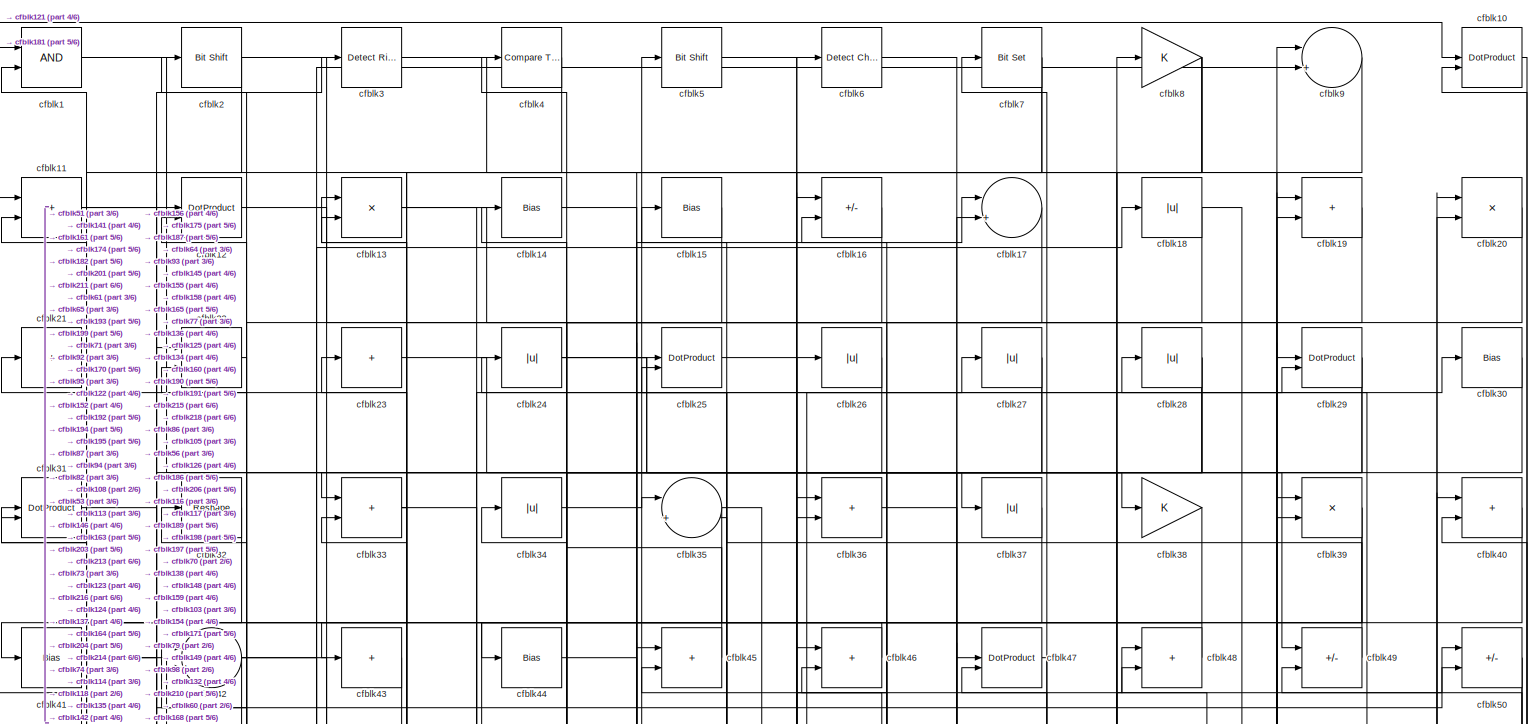
[diagram: root canvas - part 1/6, full width, top band]
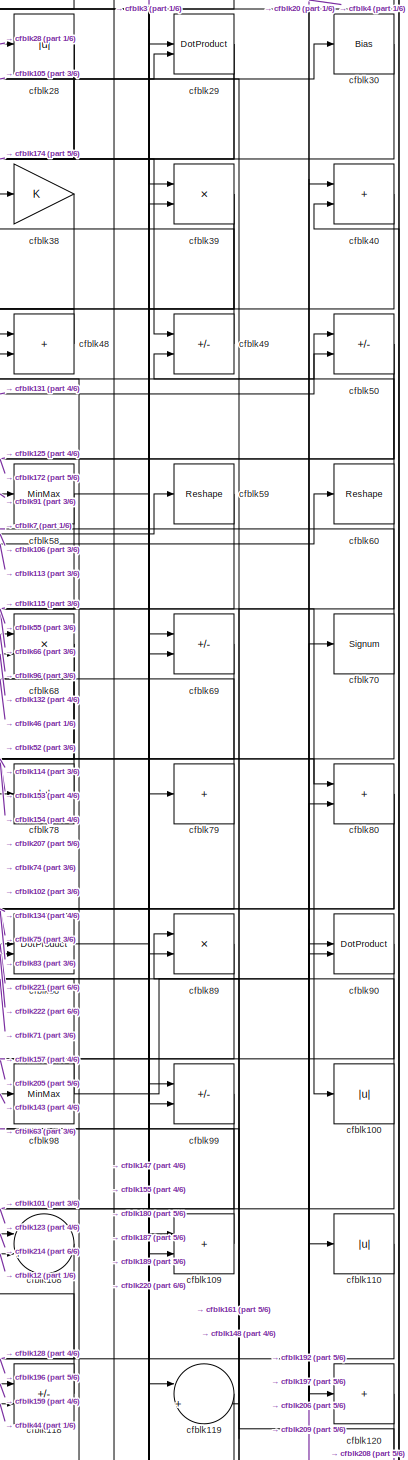
[diagram: root canvas - part 2/6, top right region]
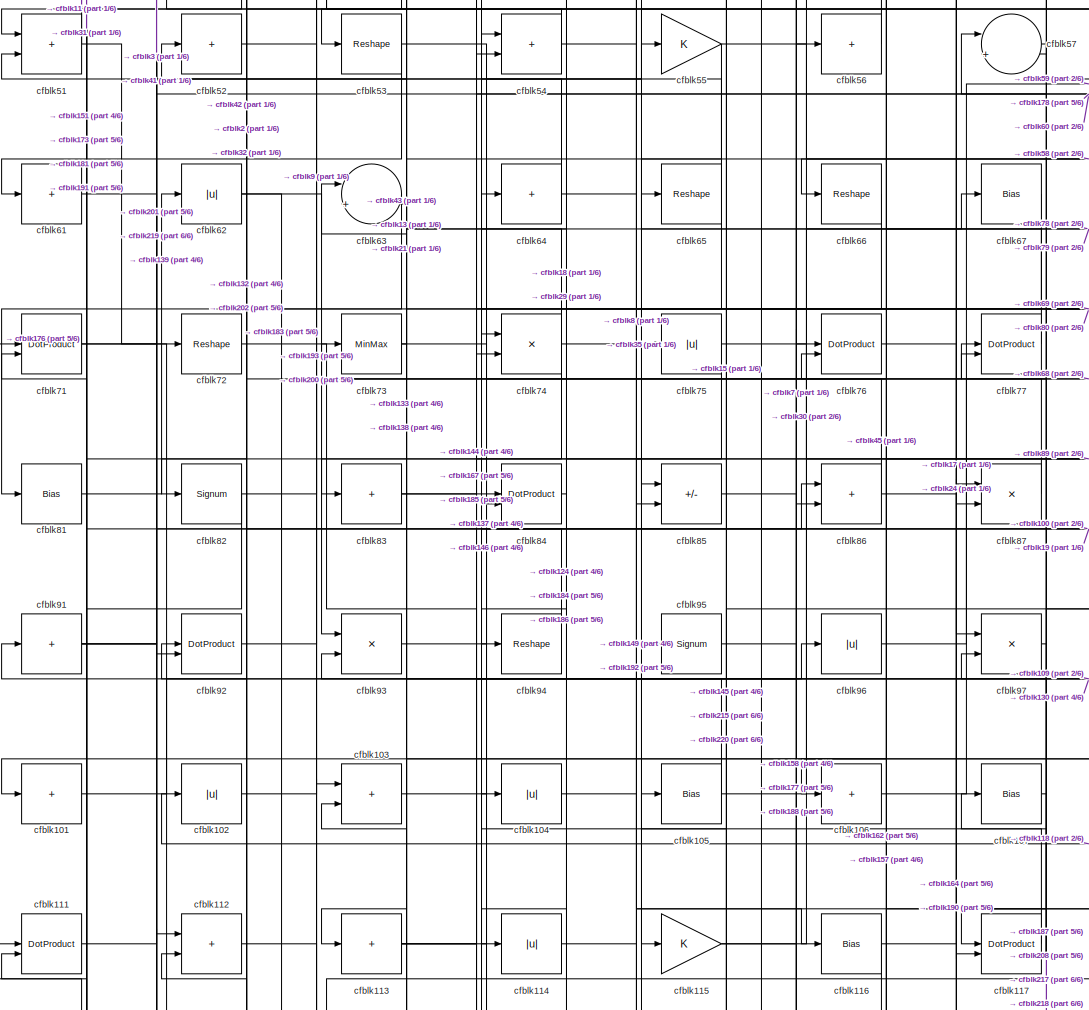
[diagram: root canvas - part 3/6, central region]
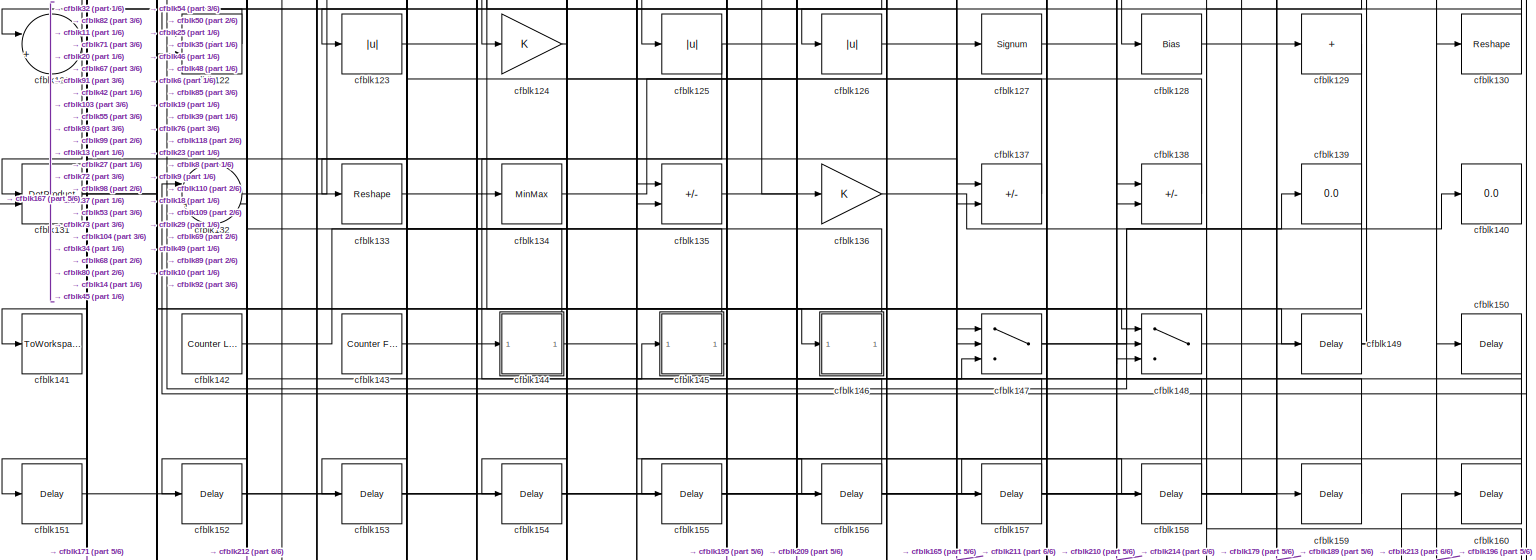
[diagram: root canvas - part 4/6, full width, middle band]
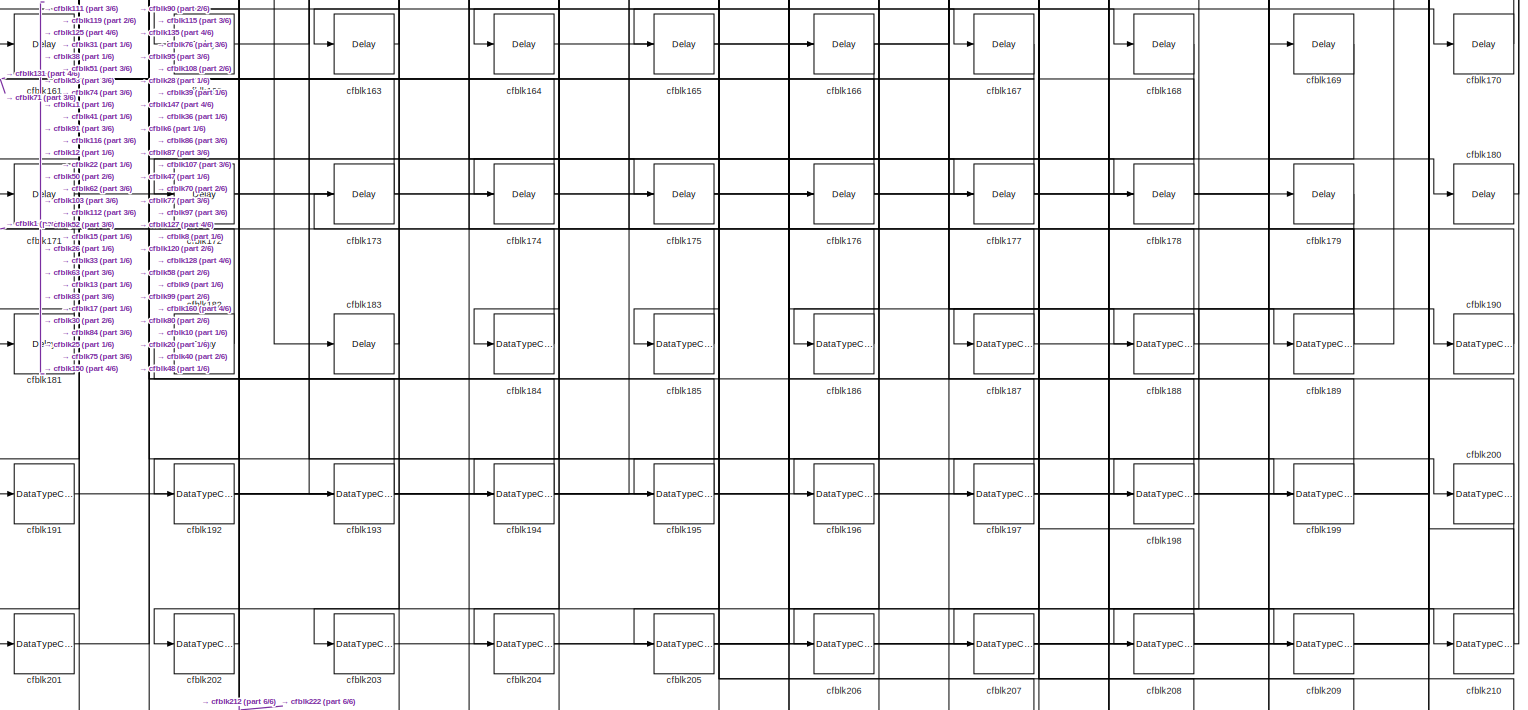
[diagram: root canvas - part 5/6, full width, bottom band]
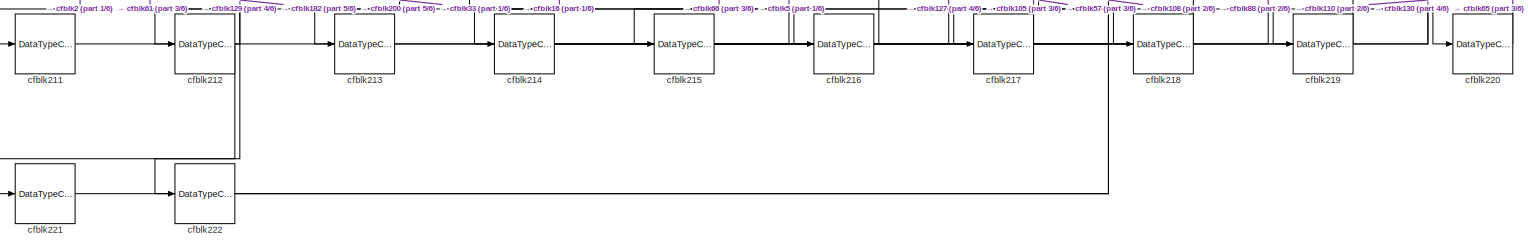
[diagram: root canvas - part 6/6, full width, bottom band]
MODEL slx_a0830a3f0579
KIND model
CONFIG AbsTol = auto
CONFIG EnableMultiTasking = off
CONFIG FixedStep = auto
CONFIG MaxStep = auto
CONFIG MinStep = auto
CONFIG RelTol = 1e-3
CONFIG SampleTimeConstraint = Unconstrained
CONFIG SolverName = VariableStepAuto
CONFIG StartTime = 0.0
CONFIG StopTime = 10.0
BLOCK [Logic] cfblk1
  AllPortsSameDT = off
  OutDataTypeStr = boolean
BLOCK [DotProduct] cfblk10
  OutDataTypeStr = Inherit: Inherit via internal rule
BLOCK [Abs] cfblk100
  SaturateOnIntegerOverflow = off
BLOCK [Sum] cfblk101
  IconShape = rectangular
  Inputs = +
BLOCK [Abs] cfblk102
  SaturateOnIntegerOverflow = off
BLOCK [Sum] cfblk103
  IconShape = rectangular
BLOCK [Abs] cfblk104
  SaturateOnIntegerOverflow = off
BLOCK [Bias] cfblk105
  Bias = 0.0
  SaturateOnIntegerOverflow = off
BLOCK [Sum] cfblk106
  IconShape = rectangular
  Inputs = +
BLOCK [Bias] cfblk107
  Bias = 0.0
  SaturateOnIntegerOverflow = off
BLOCK [Sum] cfblk108
  Inputs = |++
BLOCK [Sum] cfblk109
  IconShape = rectangular
BLOCK [Sum] cfblk11
  IconShape = rectangular
BLOCK [Abs] cfblk110
  SaturateOnIntegerOverflow = off
BLOCK [DotProduct] cfblk111
  OutDataTypeStr = Inherit: Inherit via internal rule
BLOCK [Sum] cfblk112
  IconShape = rectangular
BLOCK [Sum] cfblk113
  IconShape = rectangular
  Inputs = +
BLOCK [Abs] cfblk114
  SaturateOnIntegerOverflow = off
BLOCK [Gain] cfblk115
BLOCK [Bias] cfblk116
  Bias = 0.0
  SaturateOnIntegerOverflow = off
BLOCK [DotProduct] cfblk117
  OutDataTypeStr = Inherit: Inherit via internal rule
BLOCK [Sum] cfblk118
  IconShape = rectangular
  Inputs = +-
BLOCK [Sum] cfblk119
  Inputs = |++
BLOCK [DotProduct] cfblk12
  OutDataTypeStr = Inherit: Inherit via internal rule
BLOCK [Sum] cfblk120
  IconShape = rectangular
  Inputs = +
BLOCK [Sum] cfblk121
  Inputs = |++
BLOCK [Sum] cfblk122
  IconShape = rectangular
BLOCK [Abs] cfblk123
  SaturateOnIntegerOverflow = off
BLOCK [Gain] cfblk124
BLOCK [Abs] cfblk125
  SaturateOnIntegerOverflow = off
BLOCK [Abs] cfblk126
  SaturateOnIntegerOverflow = off
BLOCK [Signum] cfblk127
BLOCK [Bias] cfblk128
  Bias = 0.0
  SaturateOnIntegerOverflow = off
BLOCK [Sum] cfblk129
  IconShape = rectangular
  Inputs = +
BLOCK [Product] cfblk13
  Inputs = */
  RndMeth = Zero
  SaturateOnIntegerOverflow = on
BLOCK [Reshape] cfblk130
BLOCK [DotProduct] cfblk131
  OutDataTypeStr = Inherit: Inherit via internal rule
BLOCK [Sum] cfblk132
  Inputs = |++
BLOCK [Reshape] cfblk133
BLOCK [MinMax] cfblk134
BLOCK [Sum] cfblk135
  IconShape = rectangular
  Inputs = +-
BLOCK [Gain] cfblk136
BLOCK [Sum] cfblk137
  IconShape = rectangular
  Inputs = +-
BLOCK [Sum] cfblk138
  IconShape = rectangular
  Inputs = +-
BLOCK [Display] cfblk139
  Decimation = 1
BLOCK [Bias] cfblk14
  Bias = 0.0
  SaturateOnIntegerOverflow = off
BLOCK [Display] cfblk140
  Decimation = 1
BLOCK [ToWorkspace] cfblk141
  MaxDataPoints = inf
  SampleTime = -1
  SaveFormat = Timeseries
  VariableName = simout
BLOCK [Reference] cfblk142  REF=hdlsllib/Sources/Counter
Limited
  SourceBlock = hdlsllib/Sources/Counter\nLimited
  SourceType = Counter Limited
BLOCK [Reference] cfblk143  REF=hdlsllib/Sources/Counter
Free-Running
  SourceBlock = hdlsllib/Sources/Counter\nFree-Running
  SourceType = Counter Free-Running
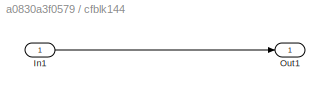
BLOCK [SubSystem] cfblk144
  LibrarySourceBlock = hdlsllib/Ports &\nSubsystems/Subsystem
BLOCK [Inport] cfblk144/In1
BLOCK [Outport] cfblk144/Out1
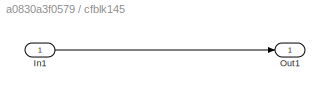
BLOCK [SubSystem] cfblk145
  LibrarySourceBlock = hdlsllib/Ports &\nSubsystems/Subsystem
BLOCK [Inport] cfblk145/In1
BLOCK [Outport] cfblk145/Out1
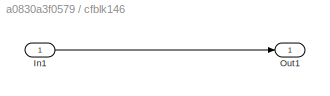
BLOCK [SubSystem] cfblk146
  LibrarySourceBlock = hdlsllib/Ports &\nSubsystems/Subsystem
BLOCK [Inport] cfblk146/In1
BLOCK [Outport] cfblk146/Out1
BLOCK [Switch] cfblk147
  InputSameDT = off
  SaturateOnIntegerOverflow = off
BLOCK [Switch] cfblk148
  InputSameDT = off
  SaturateOnIntegerOverflow = off
BLOCK [Delay] cfblk149
  InputPortMap = u0
  SampleTime = 1
BLOCK [Bias] cfblk15
  Bias = 0.0
  SaturateOnIntegerOverflow = off
BLOCK [Delay] cfblk150
  InputPortMap = u0
  SampleTime = 1
BLOCK [Delay] cfblk151
  InputPortMap = u0
  SampleTime = 1
BLOCK [Delay] cfblk152
  InputPortMap = u0
  SampleTime = 1
BLOCK [Delay] cfblk153
  InputPortMap = u0
  SampleTime = 1
BLOCK [Delay] cfblk154
  InputPortMap = u0
  SampleTime = 1
BLOCK [Delay] cfblk155
  InputPortMap = u0
  SampleTime = 1
BLOCK [Delay] cfblk156
  InputPortMap = u0
  SampleTime = 1
BLOCK [Delay] cfblk157
  InputPortMap = u0
  SampleTime = 1
BLOCK [Delay] cfblk158
  InputPortMap = u0
  SampleTime = 1
BLOCK [Delay] cfblk159
  InputPortMap = u0
  SampleTime = 1
BLOCK [Sum] cfblk16
  IconShape = rectangular
  Inputs = +-
BLOCK [Delay] cfblk160
  InputPortMap = u0
  SampleTime = 1
BLOCK [Delay] cfblk161
  InputPortMap = u0
  SampleTime = 1
BLOCK [Delay] cfblk162
  InputPortMap = u0
  SampleTime = 1
BLOCK [Delay] cfblk163
  InputPortMap = u0
  SampleTime = 1
BLOCK [Delay] cfblk164
  InputPortMap = u0
  SampleTime = 1
BLOCK [Delay] cfblk165
  InputPortMap = u0
  SampleTime = 1
BLOCK [Delay] cfblk166
  InputPortMap = u0
  SampleTime = 1
BLOCK [Delay] cfblk167
  InputPortMap = u0
  SampleTime = 1
BLOCK [Delay] cfblk168
  InputPortMap = u0
  SampleTime = 1
BLOCK [Delay] cfblk169
  InputPortMap = u0
  SampleTime = 1
BLOCK [Sum] cfblk17
  Inputs = |++
BLOCK [Delay] cfblk170
  InputPortMap = u0
  SampleTime = 1
BLOCK [Delay] cfblk171
  InputPortMap = u0
  SampleTime = 1
BLOCK [Delay] cfblk172
  InputPortMap = u0
  SampleTime = 1
BLOCK [Delay] cfblk173
  InputPortMap = u0
  SampleTime = 1
BLOCK [Delay] cfblk174
  InputPortMap = u0
  SampleTime = 1
BLOCK [Delay] cfblk175
  InputPortMap = u0
  SampleTime = 1
BLOCK [Delay] cfblk176
  InputPortMap = u0
  SampleTime = 1
BLOCK [Delay] cfblk177
  InputPortMap = u0
  SampleTime = 1
BLOCK [Delay] cfblk178
  InputPortMap = u0
  SampleTime = 1
BLOCK [Delay] cfblk179
  InputPortMap = u0
  SampleTime = 1
BLOCK [Abs] cfblk18
  SaturateOnIntegerOverflow = off
BLOCK [Delay] cfblk180
  InputPortMap = u0
  SampleTime = 1
BLOCK [Delay] cfblk181
  InputPortMap = u0
  SampleTime = 1
BLOCK [Delay] cfblk182
  InputPortMap = u0
  SampleTime = 1
BLOCK [Delay] cfblk183
  InputPortMap = u0
  SampleTime = 1
BLOCK [DataTypeConversion] cfblk184
  OutDataTypeStr = uint8
  RndMeth = Floor
  SaturateOnIntegerOverflow = off
BLOCK [DataTypeConversion] cfblk185
  OutDataTypeStr = uint8
  RndMeth = Floor
  SaturateOnIntegerOverflow = off
BLOCK [DataTypeConversion] cfblk186
  OutDataTypeStr = uint8
  RndMeth = Floor
  SaturateOnIntegerOverflow = off
BLOCK [DataTypeConversion] cfblk187
  RndMeth = Floor
  SaturateOnIntegerOverflow = off
BLOCK [DataTypeConversion] cfblk188
  OutDataTypeStr = uint8
  RndMeth = Floor
  SaturateOnIntegerOverflow = off
BLOCK [DataTypeConversion] cfblk189
  RndMeth = Floor
  SaturateOnIntegerOverflow = off
BLOCK [Sum] cfblk19
  IconShape = rectangular
BLOCK [DataTypeConversion] cfblk190
  OutDataTypeStr = uint8
  RndMeth = Floor
  SaturateOnIntegerOverflow = off
BLOCK [DataTypeConversion] cfblk191
  OutDataTypeStr = uint8
  RndMeth = Floor
  SaturateOnIntegerOverflow = off
BLOCK [DataTypeConversion] cfblk192
  RndMeth = Floor
  SaturateOnIntegerOverflow = off
BLOCK [DataTypeConversion] cfblk193
  OutDataTypeStr = uint8
  RndMeth = Floor
  SaturateOnIntegerOverflow = off
BLOCK [DataTypeConversion] cfblk194
  OutDataTypeStr = uint8
  RndMeth = Floor
  SaturateOnIntegerOverflow = off
BLOCK [DataTypeConversion] cfblk195
  OutDataTypeStr = uint8
  RndMeth = Floor
  SaturateOnIntegerOverflow = off
BLOCK [DataTypeConversion] cfblk196
  OutDataTypeStr = uint8
  RndMeth = Floor
  SaturateOnIntegerOverflow = off
BLOCK [DataTypeConversion] cfblk197
  RndMeth = Floor
  SaturateOnIntegerOverflow = off
BLOCK [DataTypeConversion] cfblk198
  OutDataTypeStr = uint8
  RndMeth = Floor
  SaturateOnIntegerOverflow = off
BLOCK [DataTypeConversion] cfblk199
  OutDataTypeStr = uint8
  RndMeth = Floor
  SaturateOnIntegerOverflow = off
BLOCK [Reference] cfblk2  REF=hdlsllib/Logic and Bit
Operations/Bit Shift
  SourceBlock = hdlsllib/Logic and Bit\nOperations/Bit Shift
  SourceType = Bit Shift
BLOCK [Product] cfblk20
  Inputs = */
  RndMeth = Zero
  SaturateOnIntegerOverflow = on
BLOCK [DataTypeConversion] cfblk200
  RndMeth = Floor
  SaturateOnIntegerOverflow = off
BLOCK [DataTypeConversion] cfblk201
  OutDataTypeStr = uint8
  RndMeth = Floor
  SaturateOnIntegerOverflow = off
BLOCK [DataTypeConversion] cfblk202
  OutDataTypeStr = uint8
  RndMeth = Floor
  SaturateOnIntegerOverflow = off
BLOCK [DataTypeConversion] cfblk203
  OutDataTypeStr = uint8
  RndMeth = Floor
  SaturateOnIntegerOverflow = off
BLOCK [DataTypeConversion] cfblk204
  OutDataTypeStr = uint8
  RndMeth = Floor
  SaturateOnIntegerOverflow = off
BLOCK [DataTypeConversion] cfblk205
  RndMeth = Floor
  SaturateOnIntegerOverflow = off
BLOCK [DataTypeConversion] cfblk206
  OutDataTypeStr = uint8
  RndMeth = Floor
  SaturateOnIntegerOverflow = off
BLOCK [DataTypeConversion] cfblk207
  OutDataTypeStr = uint8
  RndMeth = Floor
  SaturateOnIntegerOverflow = off
BLOCK [DataTypeConversion] cfblk208
  RndMeth = Floor
  SaturateOnIntegerOverflow = off
BLOCK [DataTypeConversion] cfblk209
  OutDataTypeStr = uint8
  RndMeth = Floor
  SaturateOnIntegerOverflow = off
BLOCK [Sum] cfblk21
  IconShape = rectangular
  Inputs = +
BLOCK [DataTypeConversion] cfblk210
  RndMeth = Floor
  SaturateOnIntegerOverflow = off
BLOCK [DataTypeConversion] cfblk211
  OutDataTypeStr = uint8
  RndMeth = Floor
  SaturateOnIntegerOverflow = off
BLOCK [DataTypeConversion] cfblk212
  RndMeth = Floor
  SaturateOnIntegerOverflow = off
BLOCK [DataTypeConversion] cfblk213
  OutDataTypeStr = uint8
  RndMeth = Floor
  SaturateOnIntegerOverflow = off
BLOCK [DataTypeConversion] cfblk214
  RndMeth = Floor
  SaturateOnIntegerOverflow = off
BLOCK [DataTypeConversion] cfblk215
  OutDataTypeStr = uint8
  RndMeth = Floor
  SaturateOnIntegerOverflow = off
BLOCK [DataTypeConversion] cfblk216
  OutDataTypeStr = uint8
  RndMeth = Floor
  SaturateOnIntegerOverflow = off
BLOCK [DataTypeConversion] cfblk217
  OutDataTypeStr = uint8
  RndMeth = Floor
  SaturateOnIntegerOverflow = off
BLOCK [DataTypeConversion] cfblk218
  OutDataTypeStr = uint8
  RndMeth = Floor
  SaturateOnIntegerOverflow = off
BLOCK [DataTypeConversion] cfblk219
  OutDataTypeStr = uint8
  RndMeth = Floor
  SaturateOnIntegerOverflow = off
BLOCK [Product] cfblk22
  Inputs = */
  RndMeth = Zero
  SaturateOnIntegerOverflow = on
BLOCK [DataTypeConversion] cfblk220
  OutDataTypeStr = uint8
  RndMeth = Floor
  SaturateOnIntegerOverflow = off
BLOCK [DataTypeConversion] cfblk221
  OutDataTypeStr = uint8
  RndMeth = Floor
  SaturateOnIntegerOverflow = off
BLOCK [DataTypeConversion] cfblk222
  OutDataTypeStr = uint8
  RndMeth = Floor
  SaturateOnIntegerOverflow = off
BLOCK [Sum] cfblk23
  IconShape = rectangular
  Inputs = +
BLOCK [Abs] cfblk24
  SaturateOnIntegerOverflow = off
BLOCK [DotProduct] cfblk25
  OutDataTypeStr = Inherit: Inherit via internal rule
BLOCK [Abs] cfblk26
  SaturateOnIntegerOverflow = off
BLOCK [Abs] cfblk27
  SaturateOnIntegerOverflow = off
BLOCK [Abs] cfblk28
  SaturateOnIntegerOverflow = off
BLOCK [DotProduct] cfblk29
  OutDataTypeStr = Inherit: Inherit via internal rule
BLOCK [Reference] cfblk3  REF=hdlsllib/Logic and Bit
Operations/Detect Rise
Positive
  SourceBlock = hdlsllib/Logic and Bit\nOperations/Detect Rise\nPositive
  SourceType = Detect Rise Positive
BLOCK [Bias] cfblk30
  Bias = 0.0
  SaturateOnIntegerOverflow = off
BLOCK [DotProduct] cfblk31
  OutDataTypeStr = Inherit: Inherit via internal rule
BLOCK [Reshape] cfblk32
BLOCK [Sum] cfblk33
  IconShape = rectangular
BLOCK [Abs] cfblk34
  SaturateOnIntegerOverflow = off
BLOCK [Sum] cfblk35
  Inputs = |++
BLOCK [Sum] cfblk36
  IconShape = rectangular
BLOCK [Abs] cfblk37
  SaturateOnIntegerOverflow = off
BLOCK [Gain] cfblk38
BLOCK [Product] cfblk39
  Inputs = */
  RndMeth = Zero
  SaturateOnIntegerOverflow = on
BLOCK [Reference] cfblk4  REF=hdlsllib/Logic and Bit
Operations/Compare
To Zero
  SourceBlock = hdlsllib/Logic and Bit\nOperations/Compare\nTo Zero
  SourceType = Compare To Zero
BLOCK [Sum] cfblk40
  IconShape = rectangular
BLOCK [Bias] cfblk41
  Bias = 0.0
  SaturateOnIntegerOverflow = off
BLOCK [Sum] cfblk42
  Inputs = |++
BLOCK [Sum] cfblk43
  IconShape = rectangular
  Inputs = +
BLOCK [Bias] cfblk44
  Bias = 0.0
  SaturateOnIntegerOverflow = off
BLOCK [Sum] cfblk45
  IconShape = rectangular
BLOCK [Sum] cfblk46
  IconShape = rectangular
BLOCK [DotProduct] cfblk47
  OutDataTypeStr = Inherit: Inherit via internal rule
BLOCK [Sum] cfblk48
  IconShape = rectangular
BLOCK [Sum] cfblk49
  IconShape = rectangular
  Inputs = +-
BLOCK [Reference] cfblk5  REF=hdlsllib/Logic and Bit
Operations/Bit Shift
  SourceBlock = hdlsllib/Logic and Bit\nOperations/Bit Shift
  SourceType = Bit Shift
BLOCK [Sum] cfblk50
  IconShape = rectangular
  Inputs = +-
BLOCK [Sum] cfblk51
  IconShape = rectangular
BLOCK [Sum] cfblk52
  IconShape = rectangular
  Inputs = +
BLOCK [Reshape] cfblk53
BLOCK [Sum] cfblk54
  IconShape = rectangular
BLOCK [Gain] cfblk55
BLOCK [Sum] cfblk56
  IconShape = rectangular
  Inputs = +
BLOCK [Sum] cfblk57
  Inputs = |++
BLOCK [MinMax] cfblk58
BLOCK [Reshape] cfblk59
BLOCK [Reference] cfblk6  REF=simulink/Logic and Bit
Operations/Detect
Change
  LibrarySourceBlock = hdlsllib/Logic and Bit\nOperations/Detect\nChange
  SourceBlock = simulink/Logic and Bit\nOperations/Detect\nChange
  SourceType = Detect Change
BLOCK [Reshape] cfblk60
BLOCK [Sum] cfblk61
  IconShape = rectangular
  Inputs = +
BLOCK [Abs] cfblk62
  SaturateOnIntegerOverflow = off
BLOCK [Sum] cfblk63
  Inputs = |++
BLOCK [Sum] cfblk64
  IconShape = rectangular
  Inputs = +
BLOCK [Reshape] cfblk65
BLOCK [Reshape] cfblk66
BLOCK [Bias] cfblk67
  Bias = 0.0
  SaturateOnIntegerOverflow = off
BLOCK [Product] cfblk68
  Inputs = */
  RndMeth = Zero
  SaturateOnIntegerOverflow = on
BLOCK [Sum] cfblk69
  IconShape = rectangular
  Inputs = +-
BLOCK [Reference] cfblk7  REF=simulink/Logic and Bit
Operations/Bit Set
  LibrarySourceBlock = hdlsllib/Logic and Bit\nOperations/Bit Set
  SourceBlock = simulink/Logic and Bit\nOperations/Bit Set
  SourceType = Bit Set
BLOCK [Signum] cfblk70
BLOCK [DotProduct] cfblk71
  OutDataTypeStr = Inherit: Inherit via internal rule
BLOCK [Reshape] cfblk72
BLOCK [MinMax] cfblk73
BLOCK [Product] cfblk74
  Inputs = */
  RndMeth = Zero
  SaturateOnIntegerOverflow = on
BLOCK [Abs] cfblk75
  SaturateOnIntegerOverflow = off
BLOCK [DotProduct] cfblk76
  OutDataTypeStr = Inherit: Inherit via internal rule
BLOCK [DotProduct] cfblk77
  OutDataTypeStr = Inherit: Inherit via internal rule
BLOCK [Abs] cfblk78
  SaturateOnIntegerOverflow = off
BLOCK [Sum] cfblk79
  IconShape = rectangular
  Inputs = +
BLOCK [Gain] cfblk8
BLOCK [Sum] cfblk80
  IconShape = rectangular
BLOCK [Bias] cfblk81
  Bias = 0.0
  SaturateOnIntegerOverflow = off
BLOCK [Signum] cfblk82
BLOCK [Sum] cfblk83
  IconShape = rectangular
  Inputs = +
BLOCK [DotProduct] cfblk84
  OutDataTypeStr = Inherit: Inherit via internal rule
BLOCK [Sum] cfblk85
  IconShape = rectangular
  Inputs = +-
BLOCK [Sum] cfblk86
  IconShape = rectangular
BLOCK [Product] cfblk87
  Inputs = */
  RndMeth = Zero
  SaturateOnIntegerOverflow = on
BLOCK [DotProduct] cfblk88
  OutDataTypeStr = Inherit: Inherit via internal rule
BLOCK [Product] cfblk89
  Inputs = */
  RndMeth = Zero
  SaturateOnIntegerOverflow = on
BLOCK [Sum] cfblk9
  Inputs = |++
BLOCK [DotProduct] cfblk90
  OutDataTypeStr = Inherit: Inherit via internal rule
BLOCK [Sum] cfblk91
  IconShape = rectangular
  Inputs = +
BLOCK [DotProduct] cfblk92
  OutDataTypeStr = Inherit: Inherit via internal rule
BLOCK [Product] cfblk93
  Inputs = */
  RndMeth = Zero
  SaturateOnIntegerOverflow = on
BLOCK [Reshape] cfblk94
BLOCK [Signum] cfblk95
BLOCK [Abs] cfblk96
  SaturateOnIntegerOverflow = off
BLOCK [Product] cfblk97
  Inputs = */
  RndMeth = Zero
  SaturateOnIntegerOverflow = on
BLOCK [MinMax] cfblk98
BLOCK [Sum] cfblk99
  IconShape = rectangular
  Inputs = +-
NET cfblk100:1 -> cfblk101:1, cfblk71:2
LINE cfblk101:1 -> cfblk56:1
LINE cfblk102:1 -> cfblk78:1
LINE cfblk103:1 -> cfblk19:1
LINE cfblk104:1 -> cfblk116:1
NET cfblk105:1 -> cfblk13:2, cfblk30:1
LINE cfblk106:1 -> cfblk59:1
LINE cfblk107:1 -> cfblk187:1
LINE cfblk108:1 -> cfblk196:1
LINE cfblk109:1 -> cfblk63:1
LINE cfblk10:1 -> cfblk132:1
LINE cfblk110:1 -> cfblk128:1
LINE cfblk111:1 -> cfblk55:1
LINE cfblk112:1 -> cfblk200:1
NET cfblk113:1 -> cfblk60:1, cfblk77:1, cfblk96:1
LINE cfblk114:1 -> cfblk29:2
NET cfblk115:1 -> cfblk177:1, cfblk67:1
NET cfblk116:1 -> cfblk162:1, cfblk17:2
LINE cfblk117:1 -> cfblk64:1
LINE cfblk118:1 -> cfblk102:1
LINE cfblk119:1 -> cfblk161:1
NET cfblk11:1 -> cfblk148:3, cfblk199:1
LINE cfblk120:1 -> cfblk208:1
NET cfblk121:1 -> cfblk10:1, cfblk131:1
LINE cfblk122:1 -> cfblk121:1
LINE cfblk123:1 -> cfblk27:1
LINE cfblk124:1 -> cfblk104:1
NET cfblk125:1 -> cfblk171:1, cfblk48:1
LINE cfblk126:1 -> cfblk147:1
LINE cfblk127:1 -> cfblk210:1
LINE cfblk128:1 -> cfblk179:1
LINE cfblk129:1 -> cfblk212:1
LINE cfblk12:1 -> cfblk108:2
LINE cfblk130:1 -> cfblk92:1
NET cfblk131:1 -> cfblk148:1, cfblk50:1
LINE cfblk132:1 -> cfblk68:2
LINE cfblk133:1 -> cfblk145:1
LINE cfblk134:1 -> cfblk6:1
LINE cfblk135:1 -> cfblk209:1
LINE cfblk136:1 -> cfblk140:1
LINE cfblk137:1 -> cfblk34:1
LINE cfblk138:1 -> cfblk103:2
NET cfblk13:1 -> cfblk135:1, cfblk175:1
LINE cfblk142:1 -> cfblk45:1
LINE cfblk143:1 -> cfblk98:1
LINE cfblk144/In1:1 -> cfblk144/Out1:1
NET cfblk144:1 -> cfblk147:3, cfblk93:2
LINE cfblk145/In1:1 -> cfblk145/Out1:1
NET cfblk145:1 -> cfblk25:2, cfblk91:1
LINE cfblk146/In1:1 -> cfblk146/Out1:1
LINE cfblk146:1 -> cfblk23:1
NET cfblk147:1 -> cfblk50:2, cfblk69:2
LINE cfblk148:1 -> cfblk89:1
LINE cfblk149:1 -> cfblk49:2
LINE cfblk14:1 -> cfblk156:1
LINE cfblk150:1 -> cfblk195:1
LINE cfblk151:1 -> cfblk54:2
LINE cfblk152:1 -> cfblk29:1
LINE cfblk153:1 -> cfblk69:1
LINE cfblk154:1 -> cfblk19:2
LINE cfblk155:1 -> cfblk109:1
LINE cfblk156:1 -> cfblk42:1
LINE cfblk157:1 -> cfblk76:2
LINE cfblk158:1 -> cfblk35:2
LINE cfblk159:1 -> cfblk118:1
LINE cfblk15:1 -> cfblk163:1
LINE cfblk160:1 -> cfblk46:1
LINE cfblk161:1 -> cfblk11:2
LINE cfblk162:1 -> cfblk103:1
LINE cfblk163:1 -> cfblk33:2
LINE cfblk164:1 -> cfblk87:1
LINE cfblk165:1 -> cfblk147:2
LINE cfblk166:1 -> cfblk194:1
LINE cfblk167:1 -> cfblk131:2
LINE cfblk168:1 -> cfblk185:1
LINE cfblk169:1 -> cfblk202:1
LINE cfblk16:1 -> cfblk214:1
LINE cfblk170:1 -> cfblk48:2
LINE cfblk171:1 -> cfblk39:2
LINE cfblk172:1 -> cfblk99:2
LINE cfblk173:1 -> cfblk111:2
LINE cfblk174:1 -> cfblk31:2
LINE cfblk175:1 -> cfblk9:1
LINE cfblk176:1 -> cfblk71:1
LINE cfblk177:1 -> cfblk51:2
LINE cfblk178:1 -> cfblk97:2
LINE cfblk179:1 -> cfblk198:1
LINE cfblk17:1 -> cfblk204:1
LINE cfblk180:1 -> cfblk40:2
LINE cfblk181:1 -> cfblk1:1
LINE cfblk182:1 -> cfblk1:2
LINE cfblk183:1 -> cfblk63:2
LINE cfblk184:1 -> cfblk111:1
LINE cfblk185:1 -> cfblk84:1
LINE cfblk186:1 -> cfblk84:2
NET cfblk187:1 -> cfblk119:1, cfblk25:1
LINE cfblk188:1 -> cfblk107:1
NET cfblk189:1 -> cfblk160:1, cfblk173:1, cfblk99:1
NET cfblk18:1 -> cfblk159:1, cfblk94:1
LINE cfblk190:1 -> cfblk36:1
LINE cfblk191:1 -> cfblk36:2
NET cfblk192:1 -> cfblk176:1, cfblk70:1, cfblk75:1
LINE cfblk193:1 -> cfblk22:1
LINE cfblk194:1 -> cfblk22:2
LINE cfblk195:1 -> cfblk12:2
LINE cfblk196:1 -> cfblk150:1
NET cfblk197:1 -> cfblk12:1, cfblk40:1
LINE cfblk198:1 -> cfblk47:1
LINE cfblk199:1 -> cfblk47:2
LINE cfblk19:1 -> cfblk126:1
LINE cfblk1:1 -> cfblk49:1
NET cfblk200:1 -> cfblk222:1, cfblk76:1
LINE cfblk201:1 -> cfblk112:1
LINE cfblk202:1 -> cfblk112:2
LINE cfblk203:1 -> cfblk8:1
LINE cfblk204:1 -> cfblk26:1
NET cfblk205:1 -> cfblk166:1, cfblk80:2
LINE cfblk206:1 -> cfblk90:1
LINE cfblk207:1 -> cfblk90:2
NET cfblk208:1 -> cfblk169:1, cfblk77:2
LINE cfblk209:1 -> cfblk120:1
LINE cfblk20:1 -> cfblk152:1
NET cfblk210:1 -> cfblk10:2, cfblk20:1
LINE cfblk211:1 -> cfblk127:1
NET cfblk212:1 -> cfblk182:1, cfblk221:1
LINE cfblk213:1 -> cfblk129:1
NET cfblk214:1 -> cfblk108:1, cfblk110:1, cfblk130:1
LINE cfblk215:1 -> cfblk16:1
LINE cfblk216:1 -> cfblk16:2
LINE cfblk217:1 -> cfblk105:1
LINE cfblk218:1 -> cfblk57:1
LINE cfblk219:1 -> cfblk57:2
LINE cfblk21:1 -> cfblk61:1
LINE cfblk220:1 -> cfblk65:1
LINE cfblk221:1 -> cfblk88:1
LINE cfblk222:1 -> cfblk88:2
LINE cfblk22:1 -> cfblk192:1
LINE cfblk23:1 -> cfblk138:1
NET cfblk24:1 -> cfblk117:2, cfblk38:1
LINE cfblk25:1 -> cfblk37:1
LINE cfblk26:1 -> cfblk203:1
NET cfblk27:1 -> cfblk122:1, cfblk122:2
NET cfblk28:1 -> cfblk164:1, cfblk165:1, cfblk206:1
NET cfblk29:1 -> cfblk33:1, cfblk74:1
NET cfblk2:1 -> cfblk211:1, cfblk39:1
LINE cfblk30:1 -> cfblk174:1
LINE cfblk31:1 -> cfblk42:2
LINE cfblk32:1 -> cfblk141:1
NET cfblk33:1 -> cfblk213:1, cfblk216:1
LINE cfblk34:1 -> cfblk5:1
NET cfblk35:1 -> cfblk136:1, cfblk82:1
LINE cfblk36:1 -> cfblk189:1
LINE cfblk37:1 -> cfblk124:1
LINE cfblk38:1 -> cfblk201:1
NET cfblk39:1 -> cfblk155:1, cfblk186:1
LINE cfblk3:1 -> cfblk79:1
LINE cfblk40:1 -> cfblk109:2
NET cfblk41:1 -> cfblk170:1, cfblk95:1
NET cfblk42:1 -> cfblk121:2, cfblk137:2, cfblk87:2
LINE cfblk43:1 -> cfblk53:1
LINE cfblk44:1 -> cfblk118:2
LINE cfblk45:1 -> cfblk14:1
LINE cfblk46:1 -> cfblk44:1
LINE cfblk47:1 -> cfblk197:1
LINE cfblk48:1 -> cfblk41:1
LINE cfblk49:1 -> cfblk24:1
LINE cfblk4:1 -> cfblk43:1
NET cfblk50:1 -> cfblk125:1, cfblk172:1
NET cfblk51:1 -> cfblk11:1, cfblk72:1
LINE cfblk52:1 -> cfblk193:1
NET cfblk53:1 -> cfblk146:1, cfblk191:1
NET cfblk54:1 -> cfblk149:1, cfblk51:1
NET cfblk55:1 -> cfblk100:1, cfblk133:1
LINE cfblk56:1 -> cfblk45:2
LINE cfblk57:1 -> cfblk217:1
NET cfblk58:1 -> cfblk180:1, cfblk66:1
LINE cfblk59:1 -> cfblk115:1
LINE cfblk5:1 -> cfblk218:1
NET cfblk60:1 -> cfblk119:2, cfblk28:1
LINE cfblk61:1 -> cfblk219:1
NET cfblk62:1 -> cfblk183:1, cfblk93:1
LINE cfblk63:1 -> cfblk81:1
NET cfblk64:1 -> cfblk17:1, cfblk54:1
NET cfblk65:1 -> cfblk31:1, cfblk74:2
LINE cfblk66:1 -> cfblk215:1
LINE cfblk67:1 -> cfblk132:2
NET cfblk68:1 -> cfblk153:1, cfblk154:1
LINE cfblk69:1 -> cfblk114:1
LINE cfblk6:1 -> cfblk168:1
NET cfblk70:1 -> cfblk207:1, cfblk7:1
NET cfblk71:1 -> cfblk139:1, cfblk3:1
LINE cfblk72:1 -> cfblk144:1
NET cfblk73:1 -> cfblk137:1, cfblk13:1
NET cfblk74:1 -> cfblk181:1, cfblk21:1, cfblk80:1
NET cfblk75:1 -> cfblk85:2, cfblk89:2
LINE cfblk76:1 -> cfblk97:1
LINE cfblk77:1 -> cfblk15:1
LINE cfblk78:1 -> cfblk52:1
NET cfblk79:1 -> cfblk106:1, cfblk46:2
NET cfblk7:1 -> cfblk86:2, cfblk92:2
NET cfblk80:1 -> cfblk134:1, cfblk83:1
LINE cfblk81:1 -> cfblk62:1
NET cfblk82:1 -> cfblk151:1, cfblk9:2
NET cfblk83:1 -> cfblk167:1, cfblk85:1
LINE cfblk84:1 -> cfblk184:1
LINE cfblk85:1 -> cfblk158:1
NET cfblk86:1 -> cfblk190:1, cfblk73:1
LINE cfblk87:1 -> cfblk2:1
LINE cfblk88:1 -> cfblk220:1
LINE cfblk89:1 -> cfblk157:1
NET cfblk8:1 -> cfblk113:1, cfblk135:2, cfblk148:2
LINE cfblk90:1 -> cfblk205:1
NET cfblk91:1 -> cfblk178:1, cfblk58:1, cfblk86:1
LINE cfblk92:1 -> cfblk18:1
LINE cfblk93:1 -> cfblk35:1
LINE cfblk94:1 -> cfblk32:1
LINE cfblk95:1 -> cfblk188:1
LINE cfblk96:1 -> cfblk68:1
LINE cfblk97:1 -> cfblk117:1
NET cfblk98:1 -> cfblk20:2, cfblk4:1
LINE cfblk99:1 -> cfblk123:1
LINE cfblk9:1 -> cfblk138:2
note: NET lines group one-source signal fan-out (src -> all destinations, sorted); 1:1 wires keep LINE
